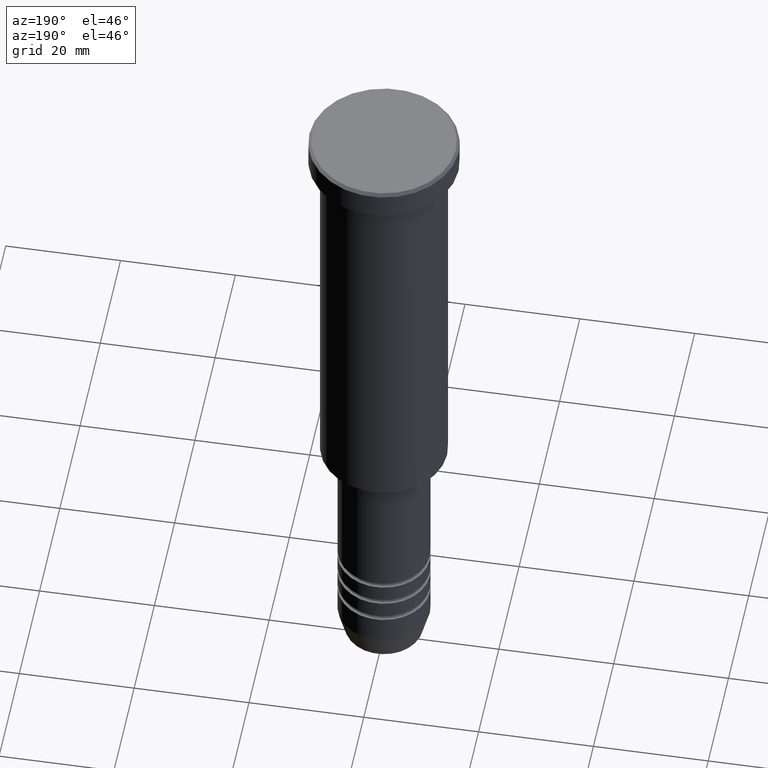
[diagram: clean part render]
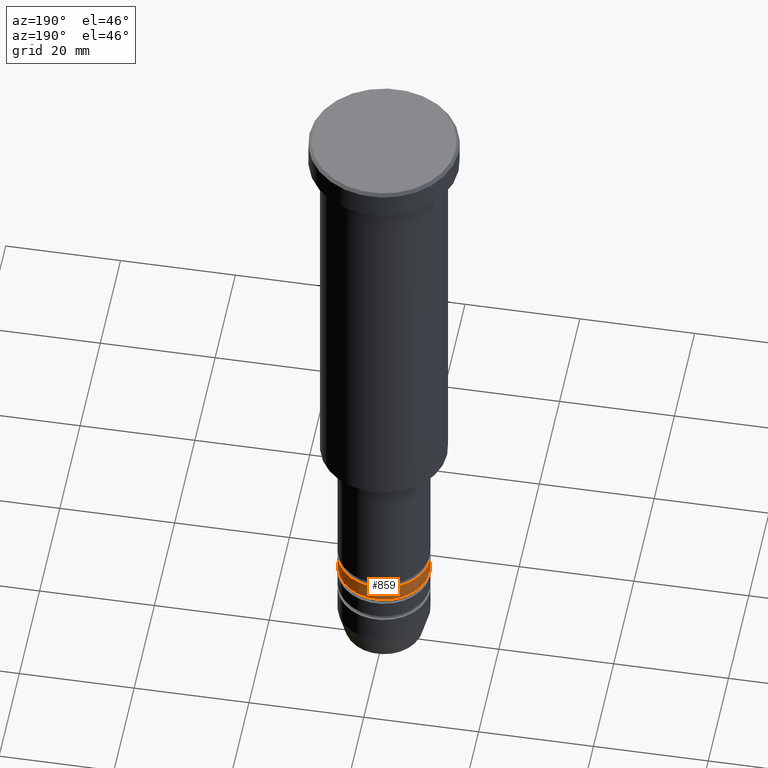
[diagram: same view with one face highlighted and labeled with its STEP entity id]
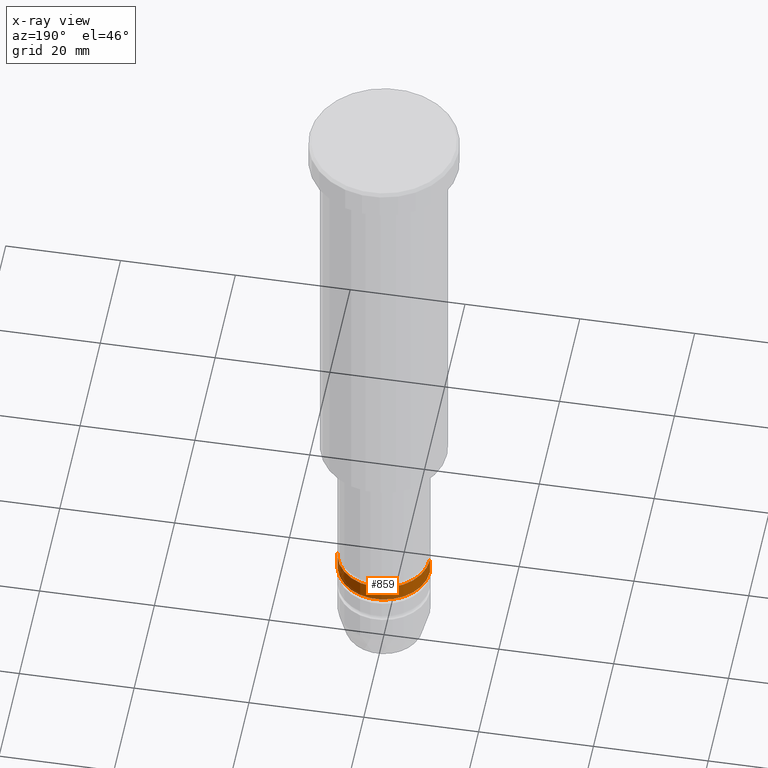
[diagram: x-ray of the same camera — body ghosted, the highlighted face saturated]
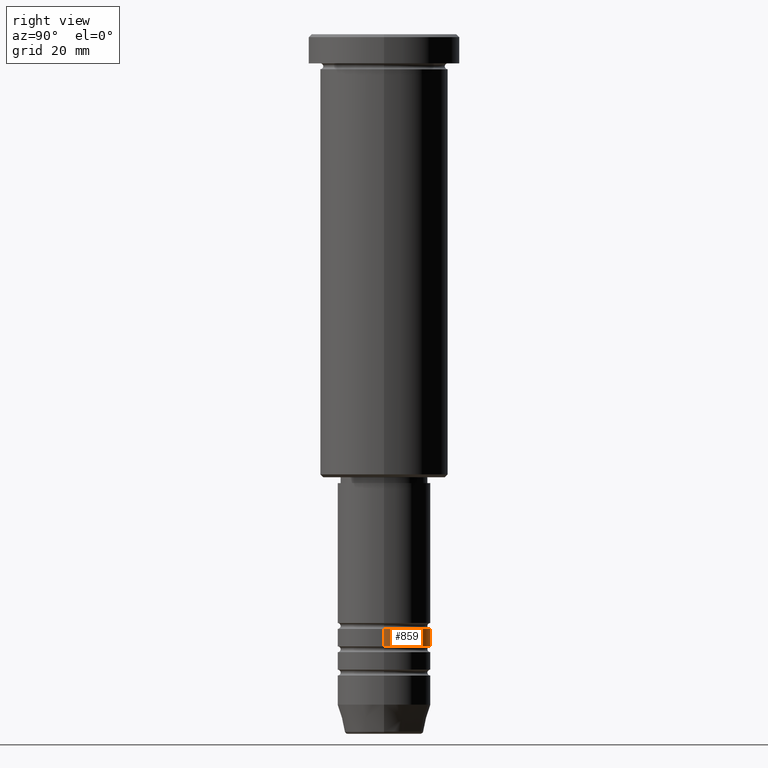
[diagram: same view with one face highlighted and labeled with its STEP entity id]
A machine part, auxiliary view. The second image highlights one B-rep face of the part: STEP entity #859.
The next image is the same camera in x-ray: the body ghosted, the highlighted face saturated — about 0% of this face is hidden behind the body in this view.
A second angle (right view) of the same face is appended — the face is thin or edge-on in the first view.
In plain terms, the highlighted cylindrical surface (partial cylindrical patch) has radius 8 mm, axis along (-0, -0, 1).
Its self-contained STEP definition (entity closure, byte-faithful):
#42 = VECTOR ( 'NONE', #955, 1000.000000000000000 ) ;
#88 = CARTESIAN_POINT ( 'NONE',  ( 8.000000000000000000, 0.000000000000000000, -101.9999999999999858 ) ) ;
#162 = DIRECTION ( 'NONE',  ( 1.000000000000000000, 0.000000000000000000, 0.000000000000000000 ) ) ;
#174 = VECTOR ( 'NONE', #291, 1000.000000000000000 ) ;
#183 = CARTESIAN_POINT ( 'NONE',  ( -8.000000000000001776, 9.797174393178827630E-16, 0.000000000000000000 ) ) ;
#235 = CARTESIAN_POINT ( 'NONE',  ( 0.000000000000000000, 0.000000000000000000, 0.000000000000000000 ) ) ;
#236 = CARTESIAN_POINT ( 'NONE',  ( -8.000000000000000000, 9.797174393178827630E-16, -101.9999999999999858 ) ) ;
#253 = CARTESIAN_POINT ( 'NONE',  ( 0.000000000000000000, 0.000000000000000000, -101.9999999999999858 ) ) ;
#279 = ORIENTED_EDGE ( 'NONE', *, *, #504, .F. ) ;
#291 = DIRECTION ( 'NONE',  ( -0.000000000000000000, -0.000000000000000000, 1.000000000000000000 ) ) ;
#294 = VERTEX_POINT ( 'NONE', #236 ) ;
#295 = LINE ( 'NONE', #183, #174 ) ;
#368 = VERTEX_POINT ( 'NONE', #88 ) ;
#465 = ORIENTED_EDGE ( 'NONE', *, *, #652, .F. ) ;
#471 = CARTESIAN_POINT ( 'NONE',  ( 8.000000000000001776, 0.000000000000000000, 0.000000000000000000 ) ) ;
#493 = CIRCLE ( 'NONE', #595, 8.000000000000003553 ) ;
#504 = EDGE_CURVE ( 'NONE', #368, #294, #834, .T. ) ;
#509 = CARTESIAN_POINT ( 'NONE',  ( 0.000000000000000000, 0.000000000000000000, -104.9999999999999858 ) ) ;
#580 = DIRECTION ( 'NONE',  ( -0.000000000000000000, -0.000000000000000000, 1.000000000000000000 ) ) ;
#586 = DIRECTION ( 'NONE',  ( 1.000000000000000000, 0.000000000000000000, 0.000000000000000000 ) ) ;
#595 = AXIS2_PLACEMENT_3D ( 'NONE', #509, #580, #586 ) ;
#597 = DIRECTION ( 'NONE',  ( 1.000000000000000000, 0.000000000000000000, 0.000000000000000000 ) ) ;
#614 = DIRECTION ( 'NONE',  ( -0.000000000000000000, -0.000000000000000000, 1.000000000000000000 ) ) ;
#652 = EDGE_CURVE ( 'NONE', #656, #368, #671, .T. ) ;
#656 = VERTEX_POINT ( 'NONE', #1121 ) ;
#671 = LINE ( 'NONE', #471, #42 ) ;
#798 = ORIENTED_EDGE ( 'NONE', *, *, #1126, .T. ) ;
#799 = FACE_OUTER_BOUND ( 'NONE', #1006, .T. ) ;
#834 = CIRCLE ( 'NONE', #1104, 8.000000000000000000 ) ;
#859 = ADVANCED_FACE ( 'NONE', ( #799 ), #1175, .T. ) ;
#902 = ORIENTED_EDGE ( 'NONE', *, *, #998, .T. ) ;
#955 = DIRECTION ( 'NONE',  ( -0.000000000000000000, -0.000000000000000000, 1.000000000000000000 ) ) ;
#992 = VERTEX_POINT ( 'NONE', #1079 ) ;
#998 = EDGE_CURVE ( 'NONE', #992, #294, #295, .T. ) ;
#1006 = EDGE_LOOP ( 'NONE', ( #798, #902, #279, #465 ) ) ;
#1056 = DIRECTION ( 'NONE',  ( -0.000000000000000000, -0.000000000000000000, 1.000000000000000000 ) ) ;
#1079 = CARTESIAN_POINT ( 'NONE',  ( -8.000000000000003553, 9.797174393178829602E-16, -104.9999999999999858 ) ) ;
#1104 = AXIS2_PLACEMENT_3D ( 'NONE', #253, #614, #162 ) ;
#1121 = CARTESIAN_POINT ( 'NONE',  ( 8.000000000000003553, 0.000000000000000000, -104.9999999999999858 ) ) ;
#1126 = EDGE_CURVE ( 'NONE', #656, #992, #493, .T. ) ;
#1167 = AXIS2_PLACEMENT_3D ( 'NONE', #235, #1056, #597 ) ;
#1175 = CYLINDRICAL_SURFACE ( 'NONE', #1167, 8.000000000000001776 ) ;